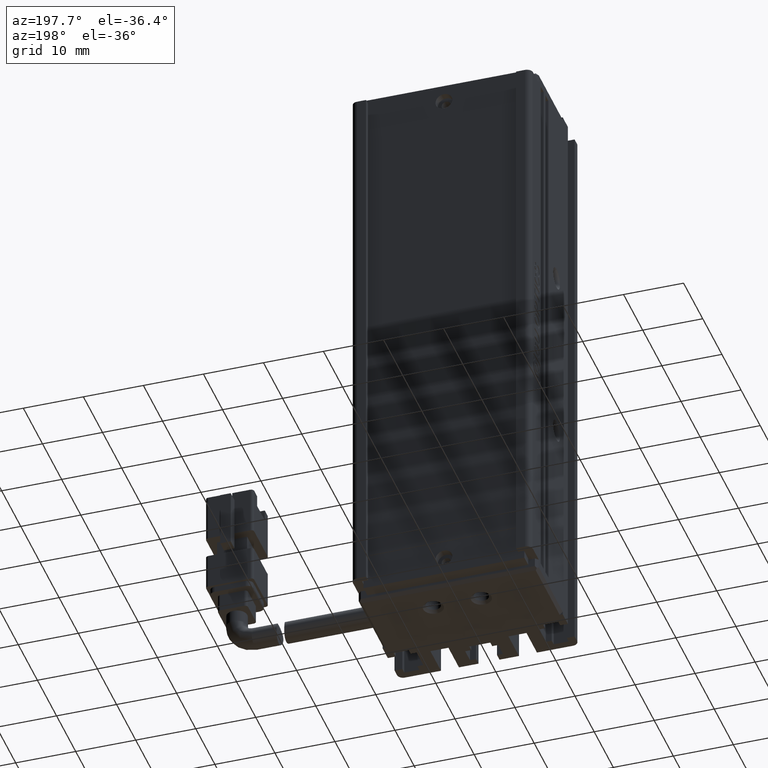
[diagram: clean part render]
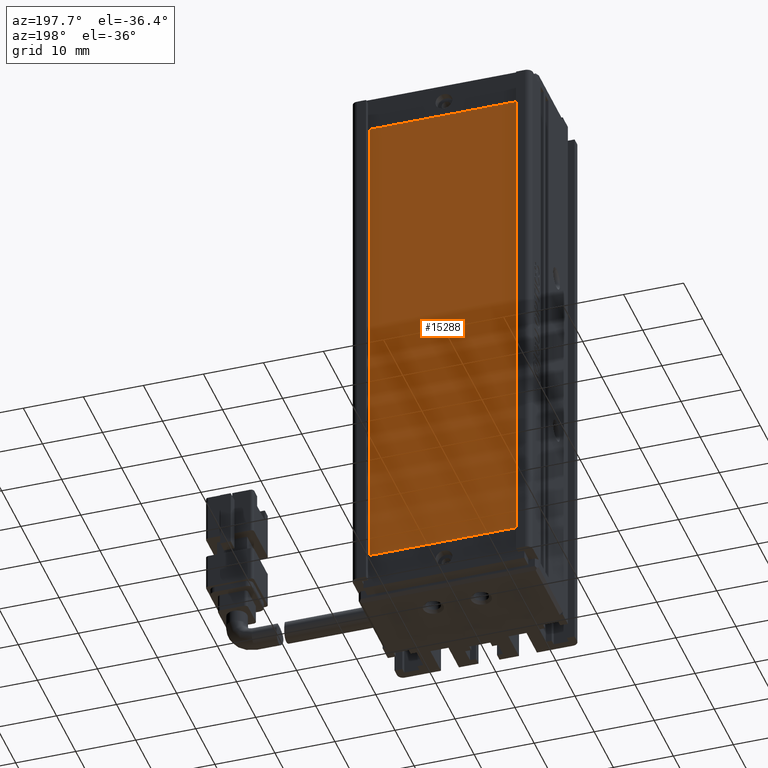
[diagram: same view with one face highlighted and labeled with its STEP entity id]
A machine part, auxiliary view. The second image highlights one B-rep face of the part: STEP entity #15288.
In plain terms, the highlighted planar face has unit normal (0, 1, 0).
Its self-contained STEP definition (entity closure, byte-faithful):
#341 = VECTOR ( 'NONE', #16814, 1000.000000000000000 ) ;
#1595 = EDGE_CURVE ( 'NONE', #20257, #24486, #24496, .T. ) ;
#1920 = VERTEX_POINT ( 'NONE', #6061 ) ;
#2991 = EDGE_CURVE ( 'NONE', #24486, #1920, #16465, .T. ) ;
#3415 = EDGE_LOOP ( 'NONE', ( #10642, #5050, #27947, #6589 ) ) ;
#5050 = ORIENTED_EDGE ( 'NONE', *, *, #13182, .T. ) ;
#6061 = CARTESIAN_POINT ( 'NONE',  ( 53.32537974683541600, 34.29594479660387000, -72.84999999999996600 ) ) ;
#6589 = ORIENTED_EDGE ( 'NONE', *, *, #2991, .T. ) ;
#7793 = CARTESIAN_POINT ( 'NONE',  ( 28.52537974683541600, 34.29594479660387000, -156.8499999999999900 ) ) ;
#9554 = CARTESIAN_POINT ( 'NONE',  ( 28.52537974683541600, 34.29594479660387000, -156.8499999999999900 ) ) ;
#10642 = ORIENTED_EDGE ( 'NONE', *, *, #16201, .T. ) ;
#10761 = CARTESIAN_POINT ( 'NONE',  ( 28.52537974683541600, 34.29594479660387000, -72.84999999999996600 ) ) ;
#13182 = EDGE_CURVE ( 'NONE', #27245, #20257, #20128, .T. ) ;
#13410 = DIRECTION ( 'NONE',  ( 0.0000000000000000000, 1.000000000000000000, 0.0000000000000000000 ) ) ;
#14399 = CARTESIAN_POINT ( 'NONE',  ( 53.32537974683541600, 34.29594479660387000, -72.84999999999996600 ) ) ;
#14659 = FACE_OUTER_BOUND ( 'NONE', #3415, .T. ) ;
#15288 = ADVANCED_FACE ( 'NONE', ( #14659 ), #25359, .T. ) ;
#16201 = EDGE_CURVE ( 'NONE', #1920, #27245, #19500, .T. ) ;
#16465 = LINE ( 'NONE', #20933, #28597 ) ;
#16814 = DIRECTION ( 'NONE',  ( 0.0000000000000000000, 0.0000000000000000000, -1.000000000000000000 ) ) ;
#18039 = CARTESIAN_POINT ( 'NONE',  ( 53.32537974683541600, 34.29594479660387000, -156.8499999999999900 ) ) ;
#18064 = VECTOR ( 'NONE', #29601, 1000.000000000000000 ) ;
#19341 = VECTOR ( 'NONE', #20498, 1000.000000000000000 ) ;
#19500 = LINE ( 'NONE', #14399, #341 ) ;
#20128 = LINE ( 'NONE', #18039, #19341 ) ;
#20257 = VERTEX_POINT ( 'NONE', #9554 ) ;
#20498 = DIRECTION ( 'NONE',  ( -1.000000000000000000, 0.0000000000000000000, 0.0000000000000000000 ) ) ;
#20933 = CARTESIAN_POINT ( 'NONE',  ( 28.52537974683541600, 34.29594479660387000, -72.84999999999996600 ) ) ;
#23660 = CARTESIAN_POINT ( 'NONE',  ( 53.32537974683541600, 34.29594479660387000, -156.8499999999999900 ) ) ;
#24486 = VERTEX_POINT ( 'NONE', #10761 ) ;
#24496 = LINE ( 'NONE', #7793, #18064 ) ;
#25359 = PLANE ( 'NONE',  #27065 ) ;
#25768 = DIRECTION ( 'NONE',  ( 1.000000000000000000, 0.0000000000000000000, 0.0000000000000000000 ) ) ;
#27065 = AXIS2_PLACEMENT_3D ( 'NONE', #27914, #13410, #30331 ) ;
#27245 = VERTEX_POINT ( 'NONE', #23660 ) ;
#27914 = CARTESIAN_POINT ( 'NONE',  ( 0.0000000000000000000, 34.29594479660387000, 0.0000000000000000000 ) ) ;
#27947 = ORIENTED_EDGE ( 'NONE', *, *, #1595, .T. ) ;
#28597 = VECTOR ( 'NONE', #25768, 1000.000000000000000 ) ;
#29601 = DIRECTION ( 'NONE',  ( 0.0000000000000000000, 0.0000000000000000000, 1.000000000000000000 ) ) ;
#30331 = DIRECTION ( 'NONE',  ( 0.0000000000000000000, -0.0000000000000000000, 1.000000000000000000 ) ) ;